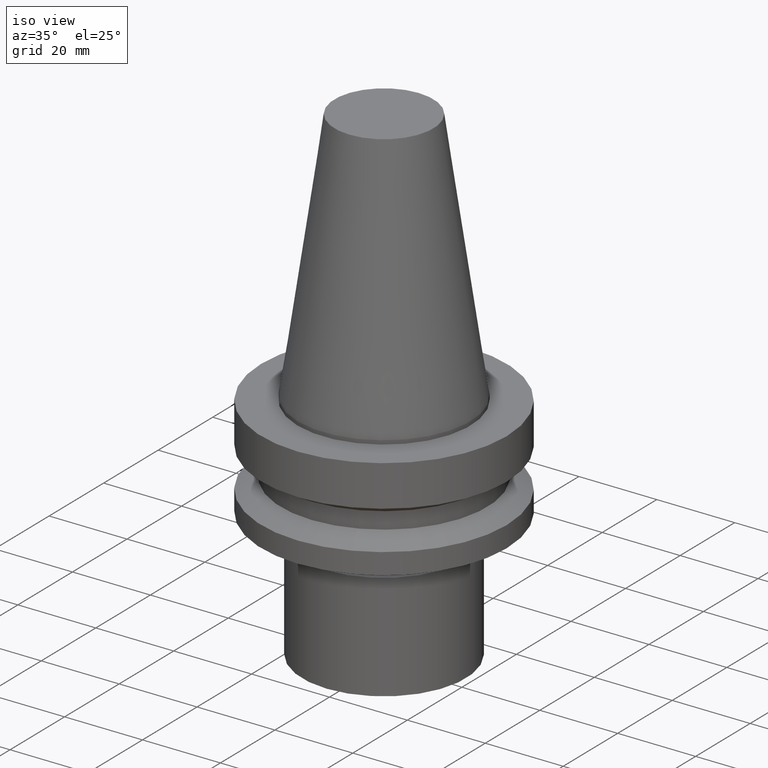
[diagram: clean part render]
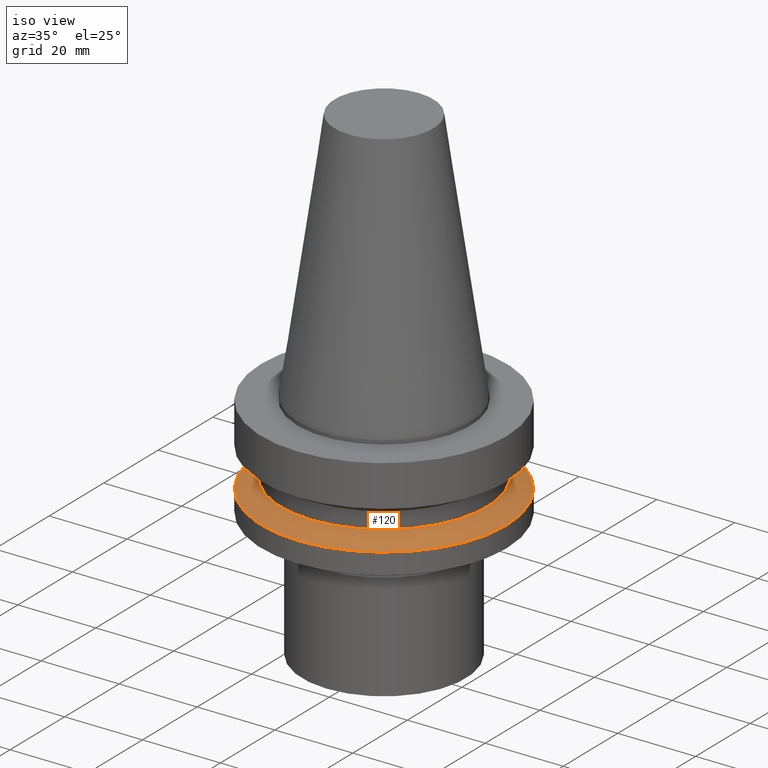
[diagram: same view with one face highlighted and labeled with its STEP entity id]
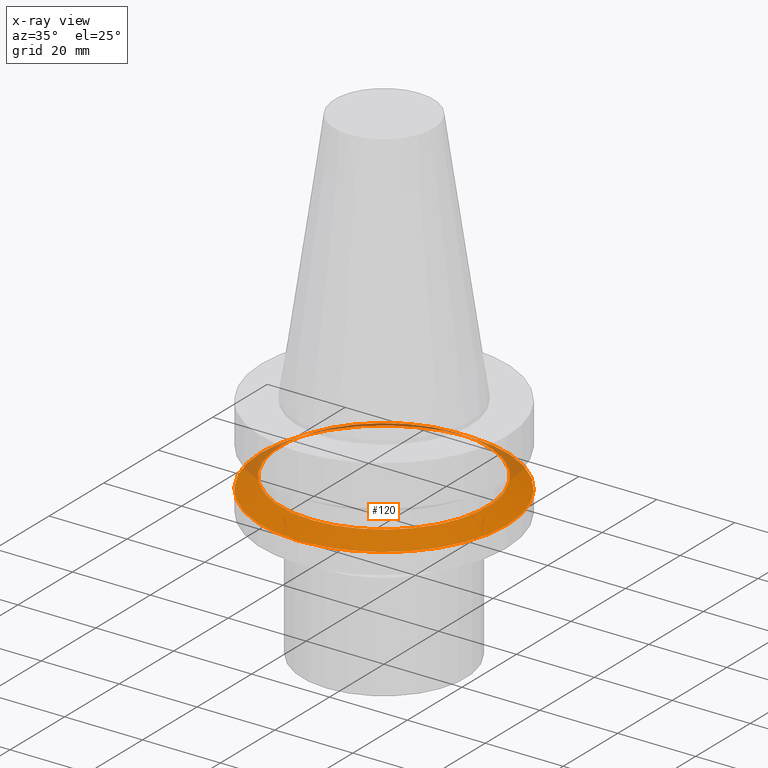
[diagram: x-ray of the same camera — body ghosted, the highlighted face saturated]
A machine part, iso view. The second image highlights one B-rep face of the part: STEP entity #120.
The next image is the same camera in x-ray: the body ghosted, the highlighted face saturated — about 12% of this face is hidden behind the body in this view.
In plain terms, the highlighted conical surface has half-angle 60 deg.
Its self-contained STEP definition (entity closure, byte-faithful):
#81=EDGE_CURVE('Unnamed[1]',#209,#209,#210,.T.);
#107=EDGE_CURVE('Unnamed[1]',#248,#248,#249,.T.);
#120=ADVANCED_FACE('Unnamed[1]',(#268,#269),#270,.T.);
#209=VERTEX_POINT('',#386);
#210=CIRCLE('',#387,26.5);
#248=VERTEX_POINT('',#436);
#249=CIRCLE('',#437,31.5000000000007);
#268=FACE_BOUND('',#461,.T.);
#269=FACE_BOUND('',#462,.T.);
#270=CONICAL_SURFACE('',#463,29.0000000000003,1.04719755119651);
#386=CARTESIAN_POINT('',(1.1479681728942E-015,26.5,-18.7477430013855));
#387=AXIS2_PLACEMENT_3D('',#587,#588,#589);
#436=CARTESIAN_POINT('',(1.32473071268174E-015,31.5000000000007,-21.6344943473346));
#437=AXIS2_PLACEMENT_3D('',#630,#631,#632);
#461=EDGE_LOOP('',(#652));
#462=EDGE_LOOP('',(#653));
#463=AXIS2_PLACEMENT_3D('',#654,#655,#656);
#587=CARTESIAN_POINT('',(1.1479681728942E-015,3.14668600087081E-014,-18.7477430013855));
#588=DIRECTION('',(6.12323399573677E-017,-5.36731610657134E-016,-1.0));
#589=DIRECTION('',(2.80381797188541E-032,1.0,-5.36731610657134E-016));
#630=CARTESIAN_POINT('',(1.32473071268174E-015,2.99174493092302E-014,-21.6344943473346));
#631=DIRECTION('',(6.12323399573677E-017,-5.36731610657134E-016,-1.0));
#632=DIRECTION('',(2.80381797188541E-032,1.0,-5.36731610657134E-016));
#652=ORIENTED_EDGE('',*,*,#107,.F.);
#653=ORIENTED_EDGE('',*,*,#81,.T.);
#654=CARTESIAN_POINT('',(1.23634944278797E-015,3.06921546589692E-014,-20.1911186743601));
#655=DIRECTION('',(6.12323399573677E-017,-5.36731610657134E-016,-1.0));
#656=DIRECTION('',(2.80381797188541E-032,1.0,-5.36731610657134E-016));